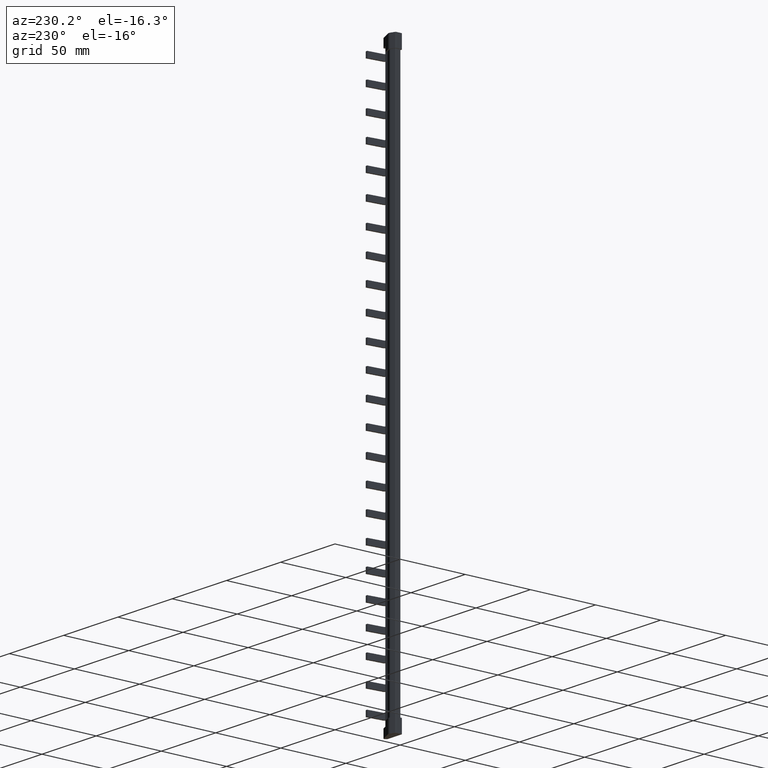
[diagram: clean part render]
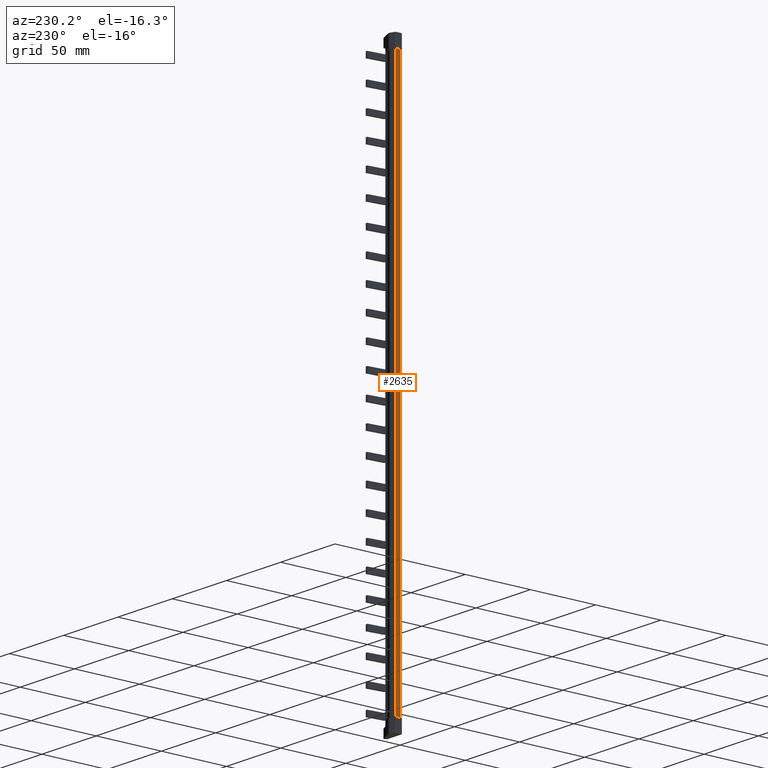
[diagram: same view with one face highlighted and labeled with its STEP entity id]
A machine part, auxiliary view. The second image highlights one B-rep face of the part: STEP entity #2635.
In plain terms, the highlighted planar face has unit normal (1, 0, -0).
Its self-contained STEP definition (entity closure, byte-faithful):
#1297 = EDGE_LOOP ( 'NONE', ( #12806, #12833, #12747, #12827 ) ) ;
#2635 = ADVANCED_FACE ( 'NONE', ( #26785 ), #26791, .F. ) ;
#3886 = LINE ( 'NONE', #3909, #9303 ) ;
#3909 = CARTESIAN_POINT ( 'NONE',  ( -0.4999999999999271700, -5.682891657265358600E-009, 209.9000000000000100 ) ) ;
#3927 = DIRECTION ( 'NONE',  ( 3.563533965728333600E-014, -1.000000000000000000, -3.939912128522177000E-031 ) ) ;
#4234 = VECTOR ( 'NONE', #17767, 1000.000000000000000 ) ;
#5454 = EDGE_CURVE ( 'NONE', #26484, #26244, #3886, .T. ) ;
#9303 = VECTOR ( 'NONE', #3927, 1000.000000000000000 ) ;
#12747 = ORIENTED_EDGE ( 'NONE', *, *, #24438, .T. ) ;
#12806 = ORIENTED_EDGE ( 'NONE', *, *, #5454, .F. ) ;
#12827 = ORIENTED_EDGE ( 'NONE', *, *, #24444, .F. ) ;
#12833 = ORIENTED_EDGE ( 'NONE', *, *, #12971, .T. ) ;
#12971 = EDGE_CURVE ( 'NONE', #26484, #25754, #17733, .T. ) ;
#17721 = CARTESIAN_POINT ( 'NONE',  ( -0.5000000000000466300, 3.615511274208504900, 219.0000000000000000 ) ) ;
#17733 = LINE ( 'NONE', #17721, #4234 ) ;
#17767 = DIRECTION ( 'NONE',  ( -0.0000000000000000000, -0.0000000000000000000, -1.000000000000000000 ) ) ;
#24438 = EDGE_CURVE ( 'NONE', #25754, #25782, #35895, .T. ) ;
#24444 = EDGE_CURVE ( 'NONE', #26244, #25782, #35907, .T. ) ;
#25754 = VERTEX_POINT ( 'NONE', #28232 ) ;
#25782 = VERTEX_POINT ( 'NONE', #28266 ) ;
#26244 = VERTEX_POINT ( 'NONE', #28709 ) ;
#26484 = VERTEX_POINT ( 'NONE', #28944 ) ;
#26785 = FACE_OUTER_BOUND ( 'NONE', #1297, .T. ) ;
#26791 = PLANE ( 'NONE',  #30321 ) ;
#26794 = DIRECTION ( 'NONE',  ( 1.000000000000000000, 3.563533965728333600E-014, -0.0000000000000000000 ) ) ;
#26797 = CARTESIAN_POINT ( 'NONE',  ( -0.5000000000000559600, 3.615511274208504900, 219.0000000000000000 ) ) ;
#26798 = DIRECTION ( 'NONE',  ( -3.563533965728333600E-014, 1.000000000000000000, 0.0000000000000000000 ) ) ;
#28232 = CARTESIAN_POINT ( 'NONE',  ( -0.4999997471736403200, 3.615511274208507600, -200.9000000000000100 ) ) ;
#28266 = CARTESIAN_POINT ( 'NONE',  ( -0.4999997117630233800, 0.4999999943170493900, -200.9000000000000100 ) ) ;
#28709 = CARTESIAN_POINT ( 'NONE',  ( -0.4999997117630233800, 0.4999999943170493900, 209.9000000000000100 ) ) ;
#28944 = CARTESIAN_POINT ( 'NONE',  ( -0.4999997471736403200, 3.615511274208507600, 209.9000000000000100 ) ) ;
#30321 = AXIS2_PLACEMENT_3D ( 'NONE', #26797, #26794, #26798 ) ;
#35497 = VECTOR ( 'NONE', #35874, 1000.000000000000100 ) ;
#35519 = VECTOR ( 'NONE', #35878, 1000.000000000000000 ) ;
#35874 = DIRECTION ( 'NONE',  ( 1.136590875544364300E-008, -0.9999999999999998900, 3.944304527801444700E-031 ) ) ;
#35878 = DIRECTION ( 'NONE',  ( -0.0000000000000000000, -0.0000000000000000000, -1.000000000000000000 ) ) ;
#35882 = CARTESIAN_POINT ( 'NONE',  ( -0.4999997511312341300, 3.963709902452906800, -200.9000000000000100 ) ) ;
#35895 = LINE ( 'NONE', #35882, #35497 ) ;
#35907 = LINE ( 'NONE', #35908, #35519 ) ;
#35908 = CARTESIAN_POINT ( 'NONE',  ( -0.4999999999999449300, 0.5000000000000004400, 219.0000000000000000 ) ) ;